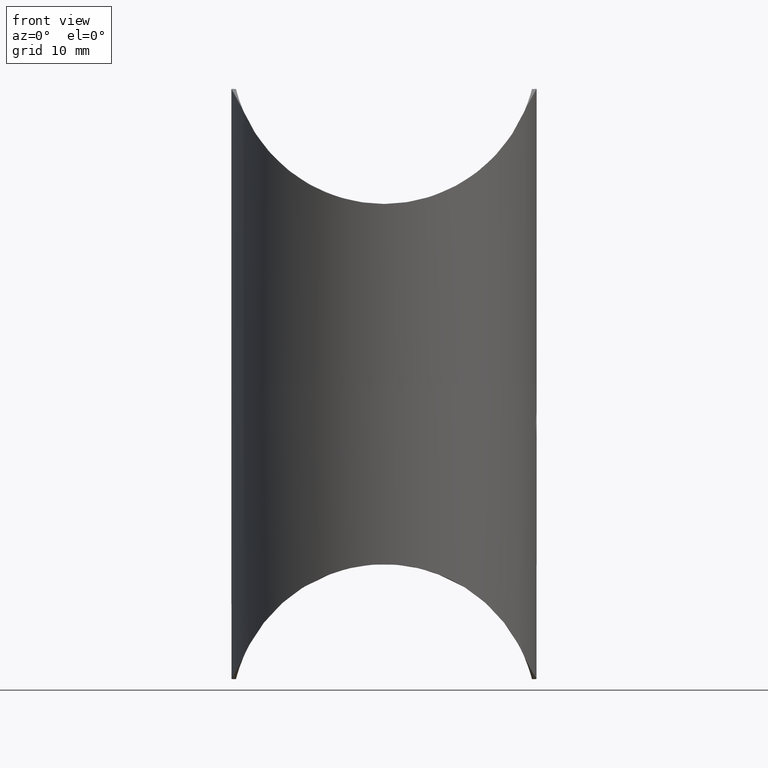
[diagram: clean part render]
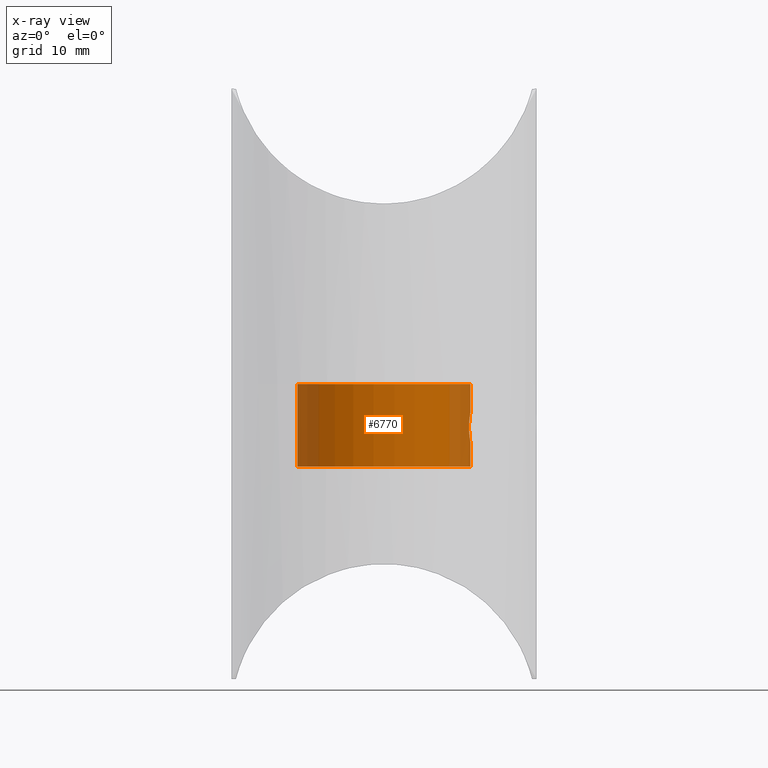
[diagram: x-ray — body ghosted, one internal face saturated and labeled with its STEP entity id]
A machine part, front view, then the same camera in x-ray: the body is ghosted and one INTERNAL B-rep face — a face not visible from any outside direction — is saturated and labeled: STEP entity #6770.
In plain terms, the highlighted cylindrical surface (bore or boss wall) has radius 12 mm, axis along (0, 0, 1).
Its self-contained STEP definition (entity closure, byte-faithful):
#83 = CARTESIAN_POINT ( 'NONE',  ( 11.86092440456027930, -1.823295257947106673, 4.949067841735958595 ) ) ;
#482 = CARTESIAN_POINT ( 'NONE',  ( 11.99758661110946534, 0.2756691184617633961, 3.913668504053608110 ) ) ;
#946 = B_SPLINE_CURVE_WITH_KNOTS ( 'NONE', 3,
 ( #1511, #13291, #482, #12256, #5678, #5870, #7822, #6932, #1370, #8852, #13137, #6742, #1408, #8904, #2497, #9977, #3562, #11047, #5728, #7606, #9764, #8603, #10598, #4401, #12900, #11858, #2043, #5464, #6354, #8514, #9629, #9676, #4215, #1062, #10643, #12940, #2193, #4257, #11671, #9540, #2089, #10698, #5424, #3258, #1022, #9641, #13833, #5279, #83, #6441, #12759, #2141, #7429, #8641, #11722, #9587, #7571, #6533 ),
 .UNSPECIFIED., .T., .F.,
 ( 4, 2, 2, 2, 2, 2, 2, 2, 2, 2, 2, 2, 2, 2, 2, 2, 2, 2, 2, 2, 2, 2, 2, 2, 2, 2, 2, 2, 4 ),
 ( 0.000000000000000000, 0.0004110877741431805251, 0.0008221755482863610503, 0.001233263322429541467, 0.001644351096572722101, 0.002466526644859082500, 0.003288702193145442466, 0.003699789967288624401, 0.004110877741431805468, 0.004521965515574986536, 0.004933053289718169337, 0.005344141063861348670, 0.005755228838004529737, 0.006166316612147710804, 0.006577404386290892739, 0.007399579934577254006, 0.007810667708720437676, 0.008221755482863619610, 0.008632843257006802412, 0.009043931031149985214, 0.009455018805293169751, 0.009866106579436352553, 0.01027719435357953535, 0.01068828212772271816, 0.01109936990186590269, 0.01151045767600908723, 0.01233263322429544763, 0.01274372099843863217, 0.01315480877258181150 ),
 .UNSPECIFIED. ) ;
#961 = CIRCLE ( 'NONE', #5055, 12.00000000000000178 ) ;
#1022 = CARTESIAN_POINT ( 'NONE',  ( 11.81722603926612081, -2.086600151662307390, 5.726333217600911851 ) ) ;
#1062 = CARTESIAN_POINT ( 'NONE',  ( 11.93197218499959433, -1.281120951505777539, 7.669636394085003417 ) ) ;
#1082 = EDGE_LOOP ( 'NONE', ( #12903 ) ) ;
#1348 = EDGE_CURVE ( 'NONE', #6405, #6405, #946, .T. ) ;
#1370 = CARTESIAN_POINT ( 'NONE',  ( 11.91979888924957720, 1.388480957413880557, 4.418606647993155612 ) ) ;
#1408 = CARTESIAN_POINT ( 'NONE',  ( 11.81484956178276668, 2.099840436459506243, 5.724290231699664666 ) ) ;
#1511 = CARTESIAN_POINT ( 'NONE',  ( 12.00000000000000355, -8.944667923005411581E-16, 3.899999999999997247 ) ) ;
#1578 = CARTESIAN_POINT ( 'NONE',  ( 0.000000000000000000, 0.000000000000000000, 0.000000000000000000 ) ) ;
#1708 = DIRECTION ( 'NONE',  ( 0.000000000000000000, 0.000000000000000000, -1.000000000000000000 ) ) ;
#2043 = CARTESIAN_POINT ( 'NONE',  ( 11.98828488230610567, 0.5470151797888779255, 8.032161743065051596 ) ) ;
#2089 = CARTESIAN_POINT ( 'NONE',  ( 11.82667835274313717, -2.032344071998362978, 6.546192681212236408 ) ) ;
#2141 = CARTESIAN_POINT ( 'NONE',  ( 11.93172128118156650, -1.293009970936232600, 4.322867531882417680 ) ) ;
#2193 = CARTESIAN_POINT ( 'NONE',  ( 11.88360518176614278, -1.669086411898566213, 7.281751924229729056 ) ) ;
#2260 = EDGE_CURVE ( 'NONE', #2892, #2892, #961, .T. ) ;
#2299 = ORIENTED_EDGE ( 'NONE', *, *, #8445, .F. ) ;
#2497 = CARTESIAN_POINT ( 'NONE',  ( 11.81726473798053334, 2.086383612213994265, 6.275473674643914812 ) ) ;
#2892 = VERTEX_POINT ( 'NONE', #11527 ) ;
#2983 = CARTESIAN_POINT ( 'NONE',  ( -12.00000000000000178, 0.000000000000000000, 11.49999999999995204 ) ) ;
#3258 = CARTESIAN_POINT ( 'NONE',  ( 11.81480205006284656, -2.100107742461962523, 5.862900920845072861 ) ) ;
#3562 = CARTESIAN_POINT ( 'NONE',  ( 11.83346516143669547, 1.992976193566195153, 6.676036297475428150 ) ) ;
#3587 = FACE_OUTER_BOUND ( 'NONE', #1082, .T. ) ;
#4215 = CARTESIAN_POINT ( 'NONE',  ( 11.95433794049144183, -1.052157554987844135, 7.822613799004675350 ) ) ;
#4257 = CARTESIAN_POINT ( 'NONE',  ( 11.86122223683398680, -1.821353511792389579, 7.054233764746970614 ) ) ;
#4401 = CARTESIAN_POINT ( 'NONE',  ( 11.95409979737488904, 1.054760392010273495, 7.821032775836709305 ) ) ;
#5055 = AXIS2_PLACEMENT_3D ( 'NONE', #1578, #1708, #9199 ) ;
#5279 = CARTESIAN_POINT ( 'NONE',  ( 11.85071665137476415, -1.887684512886479871, 5.069660372659845038 ) ) ;
#5424 = CARTESIAN_POINT ( 'NONE',  ( 11.81484057874539495, -2.099890975967357853, 6.140380114349050622 ) ) ;
#5464 = CARTESIAN_POINT ( 'NONE',  ( 11.99755274049298670, 0.2773594515023563023, 8.086139662524763239 ) ) ;
#5678 = CARTESIAN_POINT ( 'NONE',  ( 11.98151183172213763, 0.6779378043882478000, 4.007680910537622765 ) ) ;
#5728 = CARTESIAN_POINT ( 'NONE',  ( 11.86112961740385252, 1.821947627606113951, 7.053175765665420371 ) ) ;
#5870 = CARTESIAN_POINT ( 'NONE',  ( 11.96442116355708407, 0.9321221279122056114, 4.113181683491658802 ) ) ;
#6354 = CARTESIAN_POINT ( 'NONE',  ( 11.99999049797129835, 0.1380107357596332407, 8.099945702689016258 ) ) ;
#6405 = VERTEX_POINT ( 'NONE', #9395 ) ;
#6441 = CARTESIAN_POINT ( 'NONE',  ( 11.88335354840743818, -1.670880537889621209, 4.720538305759947484 ) ) ;
#6488 = EDGE_LOOP ( 'NONE', ( #10390 ) ) ;
#6533 = CARTESIAN_POINT ( 'NONE',  ( 12.00000000000000355, -8.944667923005411581E-16, 3.899999999999997247 ) ) ;
#6742 = CARTESIAN_POINT ( 'NONE',  ( 11.82504449829075810, 2.044408044357564069, 5.447579286169219159 ) ) ;
#6770 = ADVANCED_FACE ( 'NONE', ( #12615, #12274, #3587 ), #9438, .F. ) ;
#6932 = CARTESIAN_POINT ( 'NONE',  ( 11.93201236731082382, 1.280706470412639852, 4.330089670438442617 ) ) ;
#7056 = CIRCLE ( 'NONE', #13702, 12.00000000000000178 ) ;
#7239 = EDGE_LOOP ( 'NONE', ( #2299 ) ) ;
#7429 = CARTESIAN_POINT ( 'NONE',  ( 11.95583868080448120, -1.059235442716478071, 4.166198353229365381 ) ) ;
#7571 = CARTESIAN_POINT ( 'NONE',  ( 12.00000000000000711, -0.1390225640938828056, 3.899999999999998135 ) ) ;
#7606 = CARTESIAN_POINT ( 'NONE',  ( 11.88346114303485379, 1.670101859341210693, 7.280403112519454822 ) ) ;
#7822 = CARTESIAN_POINT ( 'NONE',  ( 11.95429157110416263, 1.052635373737397462, 4.177702455116090619 ) ) ;
#8445 = EDGE_CURVE ( 'NONE', #9757, #9757, #7056, .T. ) ;
#8514 = CARTESIAN_POINT ( 'NONE',  ( 12.00001891821712441, -0.2735354104619608928, 8.100108104106006124 ) ) ;
#8559 = DIRECTION ( 'NONE',  ( 0.000000000000000000, 0.000000000000000000, -1.000000000000000000 ) ) ;
#8603 = CARTESIAN_POINT ( 'NONE',  ( 11.91990506011928197, 1.387644347599305661, 7.582259098887396576 ) ) ;
#8641 = CARTESIAN_POINT ( 'NONE',  ( 11.98136072408851405, -0.6804482128722016965, 4.008595400150826826 ) ) ;
#8852 = CARTESIAN_POINT ( 'NONE',  ( 11.88363963771688958, 1.678406588973372360, 4.708609844555006418 ) ) ;
#8904 = CARTESIAN_POINT ( 'NONE',  ( 11.81480711405180983, 2.100079251906457500, 6.136027825990308493 ) ) ;
#9199 = DIRECTION ( 'NONE',  ( -1.000000000000000000, 0.000000000000000000, 0.000000000000000000 ) ) ;
#9395 = CARTESIAN_POINT ( 'NONE',  ( 12.00000000000000178, -7.347880794884120722E-16, 3.899999999999995470 ) ) ;
#9438 = CYLINDRICAL_SURFACE ( 'NONE', #13056, 12.00000000000000178 ) ;
#9540 = CARTESIAN_POINT ( 'NONE',  ( 11.83365049448734574, -1.991881971882787372, 6.679269136001753537 ) ) ;
#9587 = CARTESIAN_POINT ( 'NONE',  ( 11.99758543647637588, -0.2763240157166885758, 3.913670562736303982 ) ) ;
#9629 = CARTESIAN_POINT ( 'NONE',  ( 11.99004954306559512, -0.5503883424061315477, 8.044983021353914410 ) ) ;
#9641 = CARTESIAN_POINT ( 'NONE',  ( 11.82651144408109012, -2.033312204027048598, 5.457381181988207430 ) ) ;
#9676 = CARTESIAN_POINT ( 'NONE',  ( 11.96460655519220140, -0.9296471495185140155, 7.887982229435081649 ) ) ;
#9757 = VERTEX_POINT ( 'NONE', #2983 ) ;
#9764 = CARTESIAN_POINT ( 'NONE',  ( 11.89553171067913340, 1.583040996913484433, 7.386752282683329618 ) ) ;
#9977 = CARTESIAN_POINT ( 'NONE',  ( 11.82661786571889095, 2.032695826505253933, 6.545004586811005609 ) ) ;
#10390 = ORIENTED_EDGE ( 'NONE', *, *, #1348, .T. ) ;
#10598 = CARTESIAN_POINT ( 'NONE',  ( 11.93187980565469886, 1.281899275903434221, 7.668955991529876393 ) ) ;
#10643 = CARTESIAN_POINT ( 'NONE',  ( 11.92000811184873044, -1.386700109079762155, 7.582971449647879503 ) ) ;
#10698 = CARTESIAN_POINT ( 'NONE',  ( 11.81732158297307578, -2.086061813760280881, 6.277659829950025028 ) ) ;
#10821 = DIRECTION ( 'NONE',  ( -1.000000000000000000, 0.000000000000000000, 0.000000000000000000 ) ) ;
#11047 = CARTESIAN_POINT ( 'NONE',  ( 11.85073445340300680, 1.887576422289822586, 6.930609710695851966 ) ) ;
#11527 = CARTESIAN_POINT ( 'NONE',  ( -12.00000000000000178, 0.000000000000000000, 0.000000000000000000 ) ) ;
#11671 = CARTESIAN_POINT ( 'NONE',  ( 11.85098633725270290, -1.886001232725556420, 6.933809241330322060 ) ) ;
#11722 = CARTESIAN_POINT ( 'NONE',  ( 11.98826971918961526, -0.5475403247006511709, 3.967925917865798624 ) ) ;
#11858 = CARTESIAN_POINT ( 'NONE',  ( 11.98151228912666966, 0.6779080366305378913, 7.992320321767017788 ) ) ;
#12162 = DIRECTION ( 'NONE',  ( 0.000000000000000000, 0.000000000000000000, -1.000000000000000000 ) ) ;
#12256 = CARTESIAN_POINT ( 'NONE',  ( 11.98839789607710316, 0.5444206455312673443, 3.967174691575610534 ) ) ;
#12274 = FACE_OUTER_BOUND ( 'NONE', #7239, .T. ) ;
#12615 = FACE_BOUND ( 'NONE', #6488, .T. ) ;
#12759 = CARTESIAN_POINT ( 'NONE',  ( 11.89558327999342247, -1.582580269031047315, 4.612880063868909808 ) ) ;
#12900 = CARTESIAN_POINT ( 'NONE',  ( 11.96444018425253120, 0.9318621776127387069, 7.886937320789688677 ) ) ;
#12903 = ORIENTED_EDGE ( 'NONE', *, *, #2260, .T. ) ;
#12940 = CARTESIAN_POINT ( 'NONE',  ( 11.89586917460358251, -1.580451568311319388, 7.389571388286485742 ) ) ;
#12978 = CARTESIAN_POINT ( 'NONE',  ( 0.000000000000000000, 0.000000000000000000, 11.49999999999995204 ) ) ;
#13056 = AXIS2_PLACEMENT_3D ( 'NONE', #13290, #12162, #13334 ) ;
#13137 = CARTESIAN_POINT ( 'NONE',  ( 11.85938010180749203, 1.834771168086872795, 4.942461510080891074 ) ) ;
#13290 = CARTESIAN_POINT ( 'NONE',  ( 0.000000000000000000, 0.000000000000000000, 11.49999999999995204 ) ) ;
#13291 = CARTESIAN_POINT ( 'NONE',  ( 12.00000000000000000, 0.1390225640938815010, 3.899999999999995914 ) ) ;
#13334 = DIRECTION ( 'NONE',  ( -1.000000000000000000, 0.000000000000000000, 0.000000000000000000 ) ) ;
#13702 = AXIS2_PLACEMENT_3D ( 'NONE', #12978, #8559, #10821 ) ;
#13833 = CARTESIAN_POINT ( 'NONE',  ( 11.83348956523701823, -1.992827810120420873, 5.323596302788402568 ) ) ;